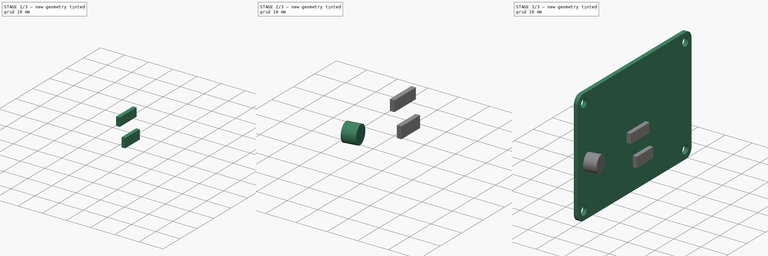
[diagram: build sequence overview — one tinted view per stage of 3, left to right]
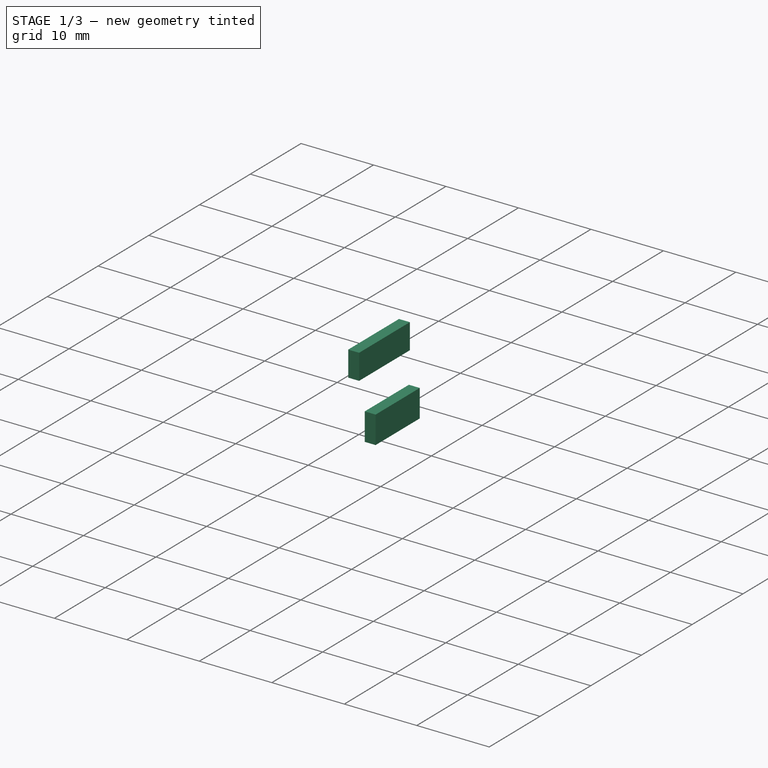
[diagram: stage 1 of 3 — iso view after this stage's code; geometry added in this stage tinted green]
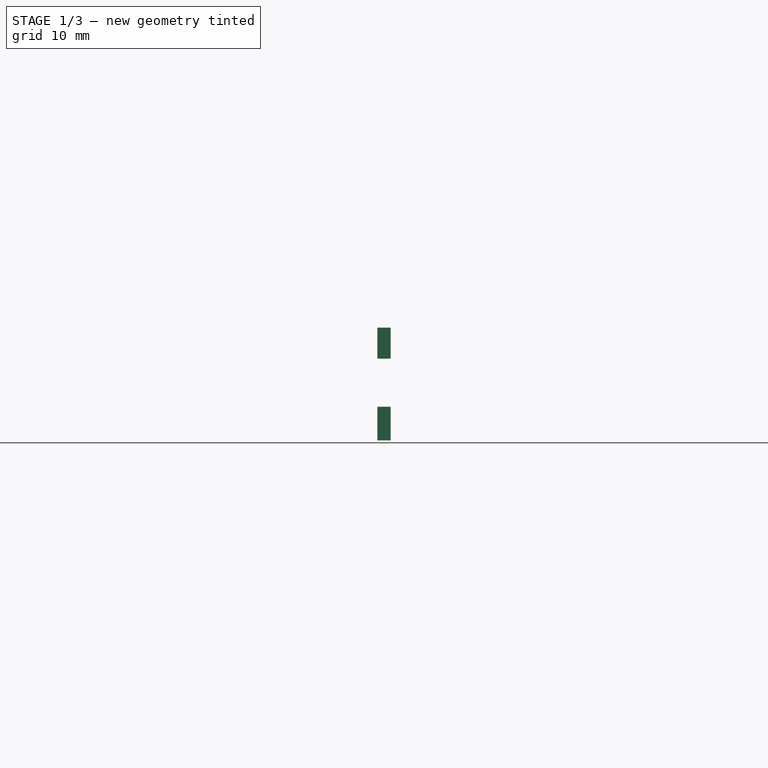
[diagram: stage 1 of 3 — front view after this stage's code; geometry added in this stage tinted green]
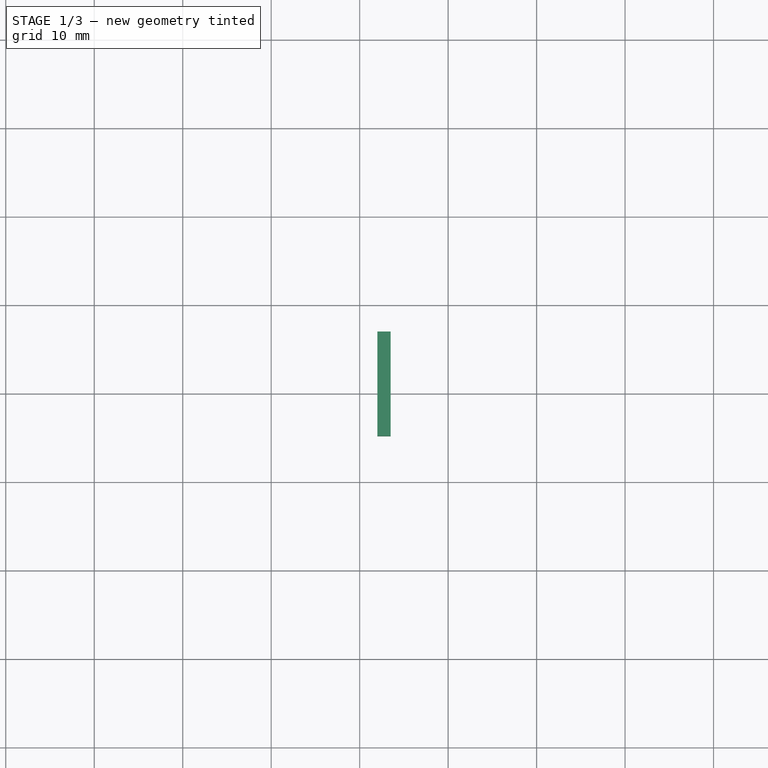
[diagram: stage 1 of 3 — top view after this stage's code; geometry added in this stage tinted green]
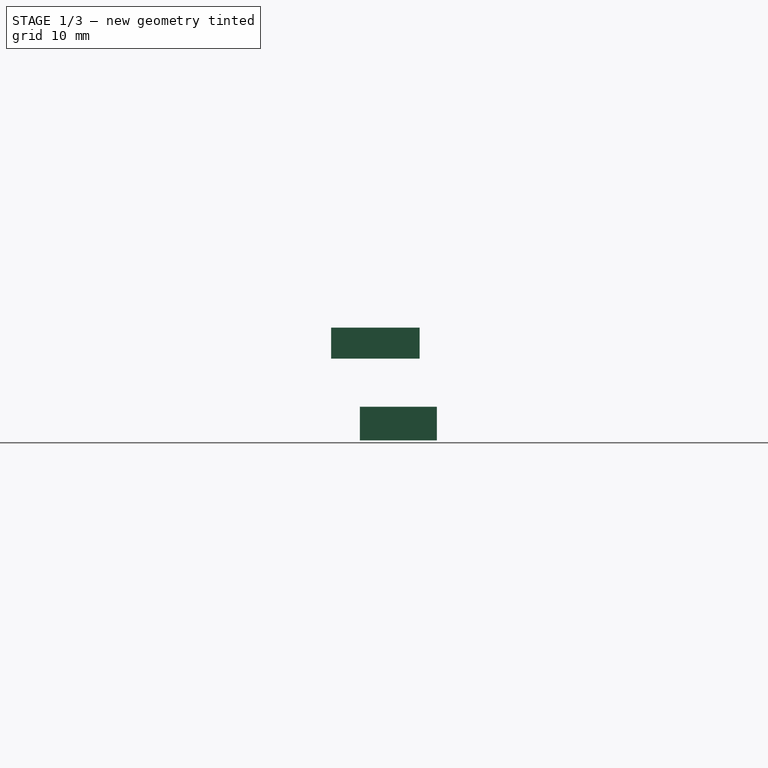
[diagram: stage 1 of 3 — right view after this stage's code; geometry added in this stage tinted green]
FCSTD DOCUMENT  (FreeCAD 1.0R39109 (Git))
Label: DFrobotSoundSensor
License: All rights reserved
LicenseURL: https://en.wikipedia.org/wiki/All_rights_reserved
objects: Part::Feature×4, App::Part×3, Part::Box×2, Sketcher::SketchObject×1, Part::Extrusion×1, Part::Fillet×1, Part::Cylinder×1
note: 11 computed .brp shape members not serialized (recipe doc carries the construction recipe); baked Part::Feature solids carry a one-line shape summary decoded from their .brp

FEATURE [Part::Box] Box  label="Cube"
  AttacherType = Attacher::AttachEngine3D
  Height = 3.5
  Length = 1.5
  Placement = pos=(2,25.05,17.75) rot=(0,0,1;0rad)
  Width = 10
FEATURE [Part::Box] Box001  label="Cube001"
  AttacherType = Attacher::AttachEngine3D
  Height = 3.8
  Length = 1.5
  Placement = pos=(2,28.3,8.5) rot=(0,0,1;0rad)
  Width = 8.7
FEATURE [App::Part] Part  label="SEN0232"
  Group = -> [__pin_RMC_v0,Sketch,Extrude,Fillet,Cylinder,Box,Box001]
  Origin = -> Origin
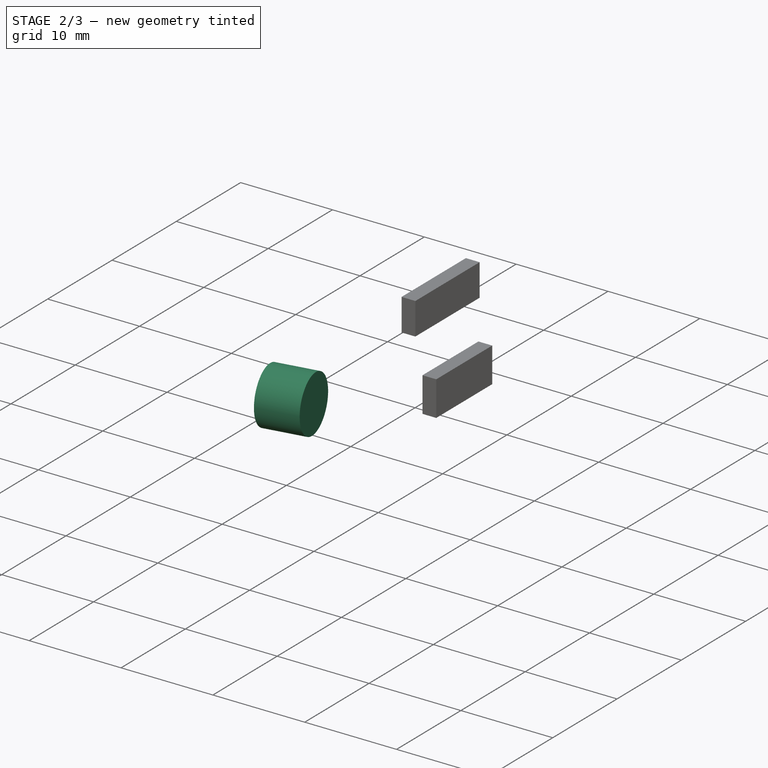
[diagram: stage 2 of 3 — iso view after this stage's code; geometry added in this stage tinted green]
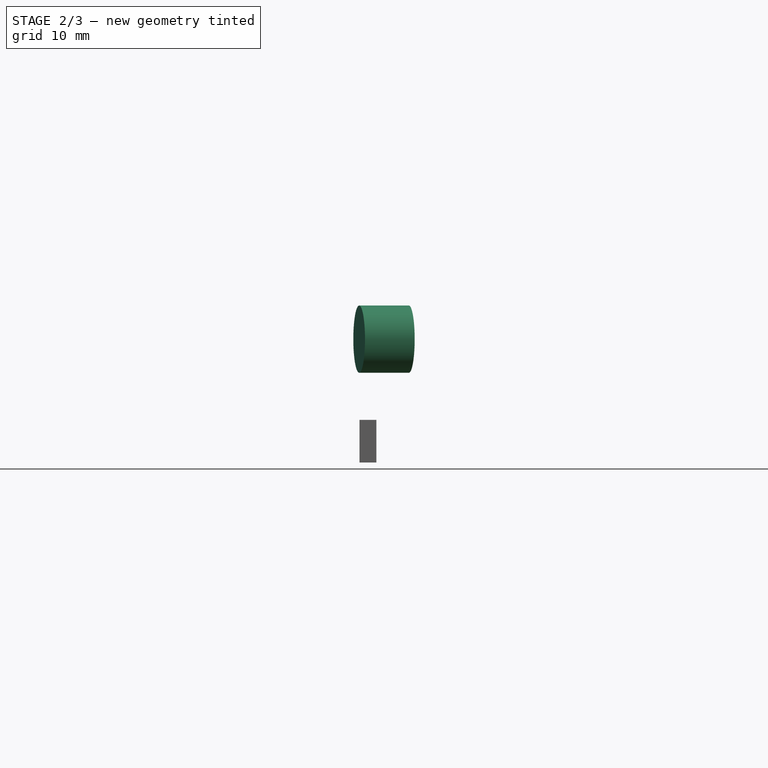
[diagram: stage 2 of 3 — front view after this stage's code; geometry added in this stage tinted green]
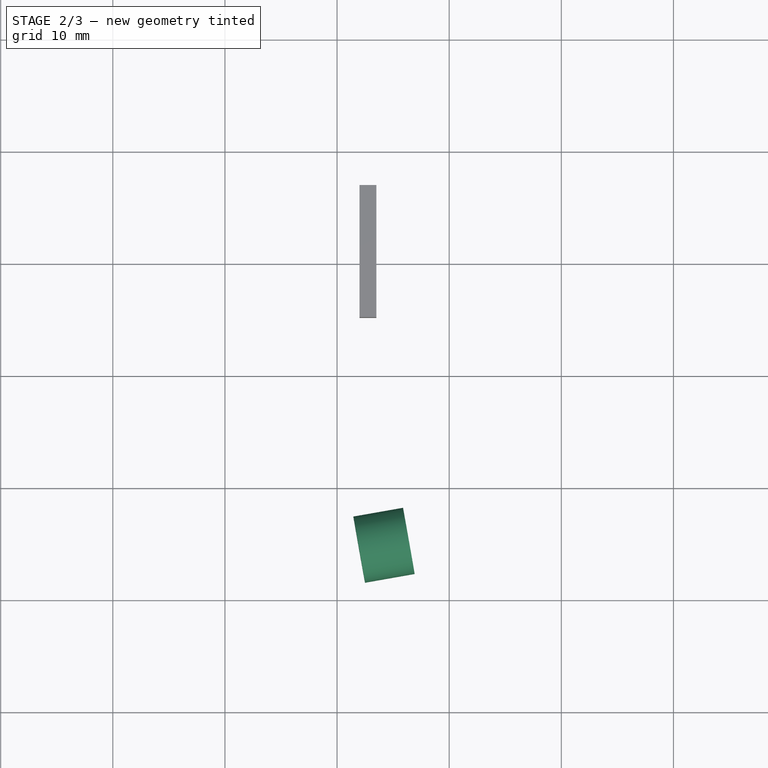
[diagram: stage 2 of 3 — top view after this stage's code; geometry added in this stage tinted green]
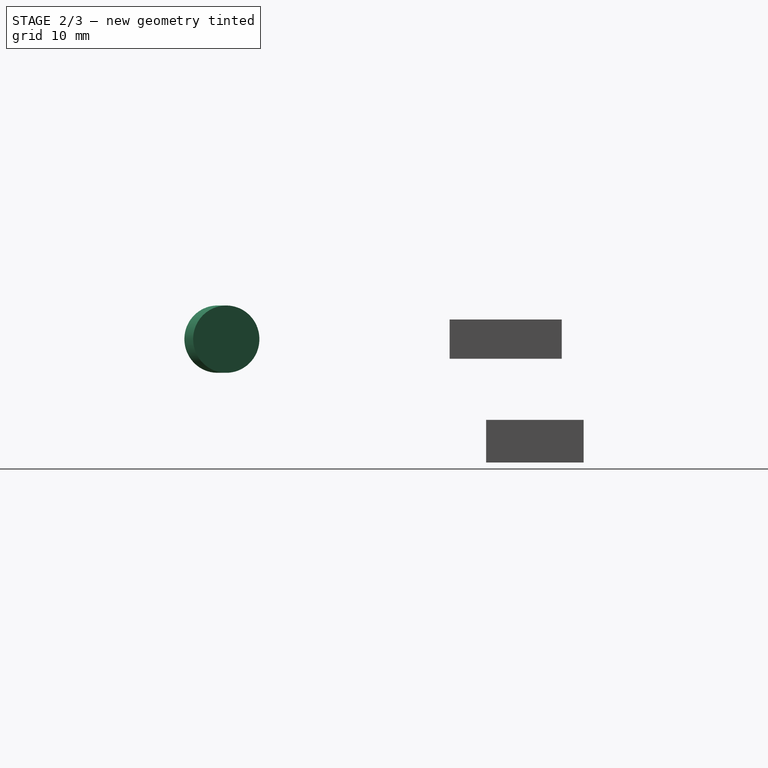
[diagram: stage 2 of 3 — right view after this stage's code; geometry added in this stage tinted green]
FEATURE [Part::Cylinder] Cylinder  label="MIC"
  Angle = 360
  AttacherType = Attacher::AttachEngine3D
  FirstAngle = 0
  Height = 4.5
  Placement = pos=(1.96962,4.3473,19.5) rot=(0.086827,-0.992433,-0.086827;4.70479rad)
  Radius = 3
  SecondAngle = 0
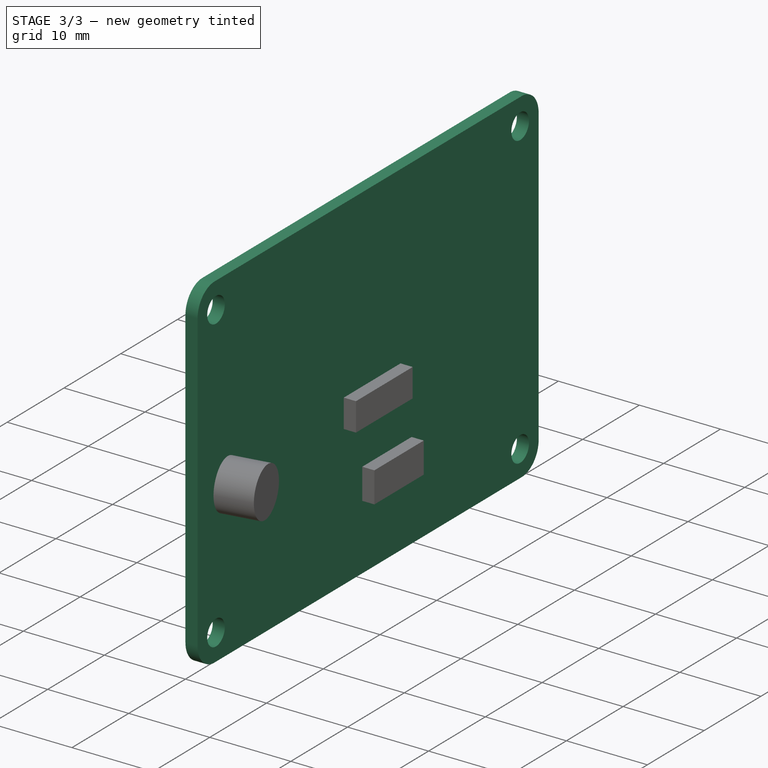
[diagram: stage 3 of 3 — iso view after this stage's code; geometry added in this stage tinted green]
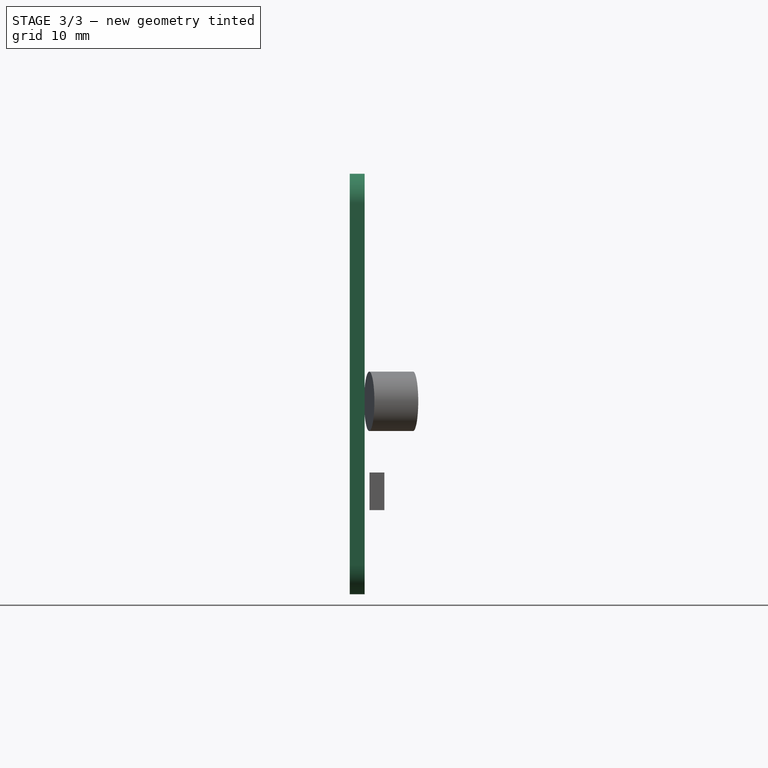
[diagram: stage 3 of 3 — front view after this stage's code; geometry added in this stage tinted green]
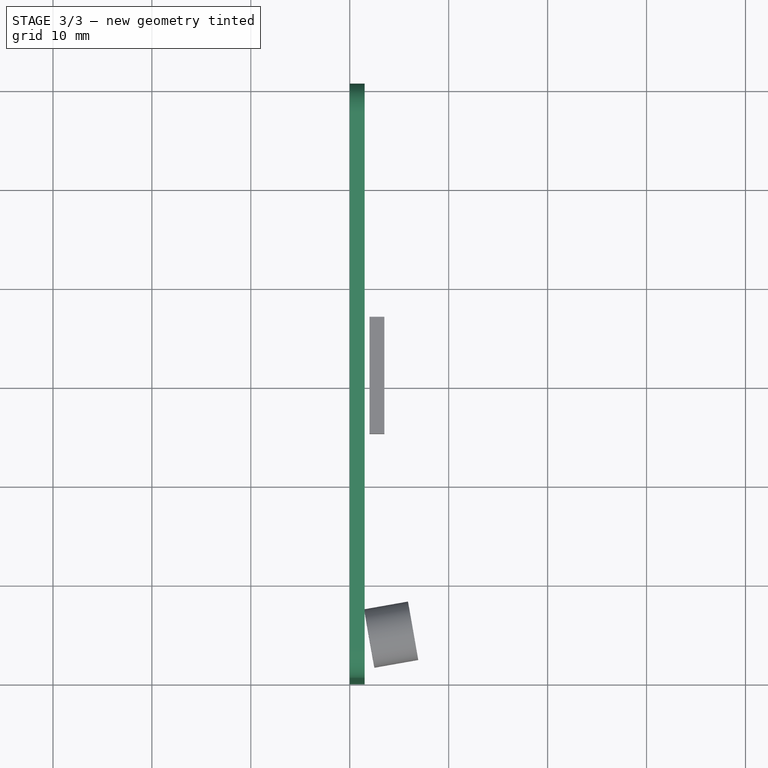
[diagram: stage 3 of 3 — top view after this stage's code; geometry added in this stage tinted green]
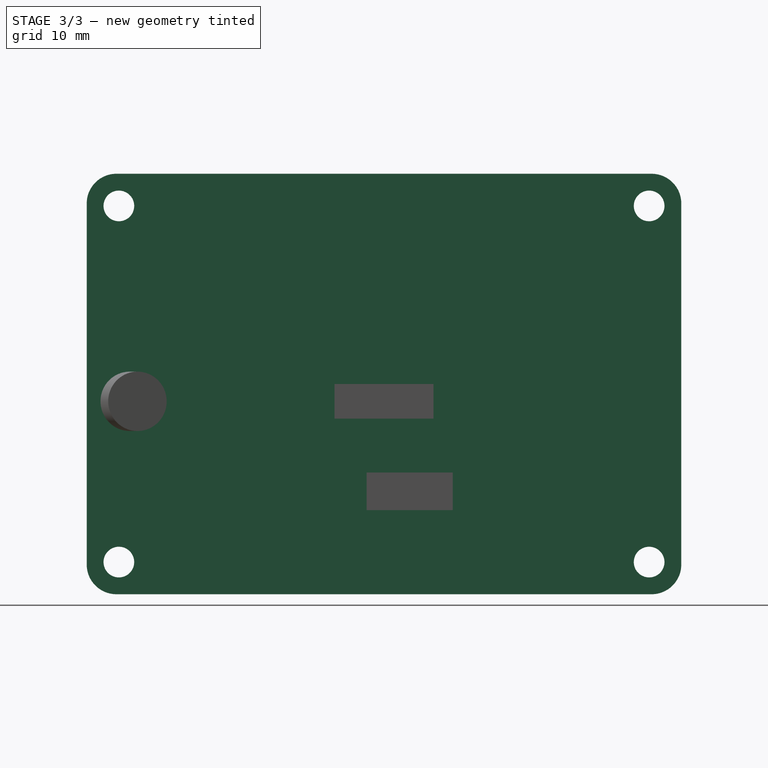
[diagram: stage 3 of 3 — right view after this stage's code; geometry added in this stage tinted green]
FEATURE [Part::Feature] Part__Feature003  label="SOLID"
  shape: bbox 9.98 x 5.7 x 7 mm, 38 faces (baked)
FEATURE [Part::Feature] Part__Feature  label="pins"
  Placement = pos=(7.37732,-14.6706,0.356181) rot=(-1,0,0;1.5708rad)
  shape: bbox 0.64 x 0.64 x 8.5 mm, 12 faces (baked)
FEATURE [Part::Feature] Part__Feature001  label="pins001"
  Placement = pos=(7.37732,-14.6706,0.356181) rot=(-1,0,0;1.5708rad)
  shape: bbox 0.64 x 0.64 x 8.5 mm, 12 faces (baked)
FEATURE [Part::Feature] Part__Feature002  label="pins002"
  Placement = pos=(7.37732,-14.6706,0.356181) rot=(-1,0,0;1.5708rad)
  shape: bbox 0.64 x 0.64 x 8.5 mm, 12 faces (baked)
FEATURE [App::Part] pins  label="pins003"
  Group = -> [Part__Feature,Part__Feature001,Part__Feature002]
  Origin = -> Origin001
FEATURE [App::Part] __pin_RMC_v0  label="3 pin RMC v0"
  Group = -> [pins,Part__Feature003]
  Origin = -> Origin002
  Placement = pos=(4.5,53,29) rot=(0.57735,-0.57735,0.57735;2.0944rad)
FEATURE [Sketcher::SketchObject] Sketch
  ArcFitTolerance = 1e-06
  FullyConstrained = true
  MakeInternals = false
  Placement = pos=(0,0,0) rot=(0.57735,0.57735,0.57735;2.0944rad)
  sketch-geometry (8):
    g0: LineSegment StartX=0 StartY=0 StartZ=0 EndX=60.1 EndY=0 EndZ=0
    g1: LineSegment StartX=60.1 StartY=0 StartZ=0 EndX=60.1 EndY=42.5 EndZ=0
    g2: LineSegment StartX=60.1 StartY=42.5 StartZ=0 EndX=0 EndY=42.5 EndZ=0
    g3: LineSegment StartX=0 StartY=42.5 StartZ=0 EndX=0 EndY=0 EndZ=0
    g4: Circle CenterX=3.25 CenterY=3.25 CenterZ=0 NormalX=0 NormalY=0 NormalZ=1 AngleXU=0 Radius=1.55
    g5: Circle CenterX=3.25 CenterY=39.25 CenterZ=0 NormalX=0 NormalY=0 NormalZ=1 AngleXU=0 Radius=1.55
    g6: Circle CenterX=56.85 CenterY=39.25 CenterZ=0 NormalX=0 NormalY=0 NormalZ=1 AngleXU=0 Radius=1.55
    g7: Circle CenterX=56.85 CenterY=3.25 CenterZ=0 NormalX=0 NormalY=0 NormalZ=1 AngleXU=0 Radius=1.55
  constraints (23):
    c: Coincident(g0,g1)
    c: Coincident(g1,g2)
    c: Coincident(g2,g3)
    c: Coincident(g3,g0)
    c: Horizontal(g0)
    c: Horizontal(g2)
    c: Vertical(g1)
    c: Vertical(g3)
    c: Coincident(g0,g-1)
    c: Distance(g0) = 60.1
    c: Distance(g3) = 42.5
    c: Diameter(g4) = 3.1
    c: Distance(g5,g3) = 3.25
    c: Distance(g5,g2) = 3.25
    c: Distance(g7,g1) = 3.25
    c: Distance(g7,g0) = 3.25
    c: Distance(g6,g1) = 3.25
    c: Distance(g6,g2) = 3.25
    c: Equal(g5,g6)
    c: Equal(g5,g7)
    c: Diameter(g5) = 3.1
    c: Distance(g4,g0) = 3.25
    c: Distance(g4,g3) = 3.25
FEATURE [Part::Extrusion] Extrude
  Base = -> Sketch
  Dir = (1,0,0)
  DirMode = 2
  FaceMakerClass = Part::FaceMakerBullseye
  FaceMakerMode = 3
  LengthFwd = 1.5
  LengthRev = 0
  Solid = true
  Symmetric = false
FEATURE [Part::Fillet] Fillet  label="pcb"
  Base = -> Extrude
  EdgeLinks = -> Extrude [Edge1,Edge2,?Edge5,?Edge8]
  Edges = 4 edges r=3: [Edge1,Edge2,Edge5,Edge8]
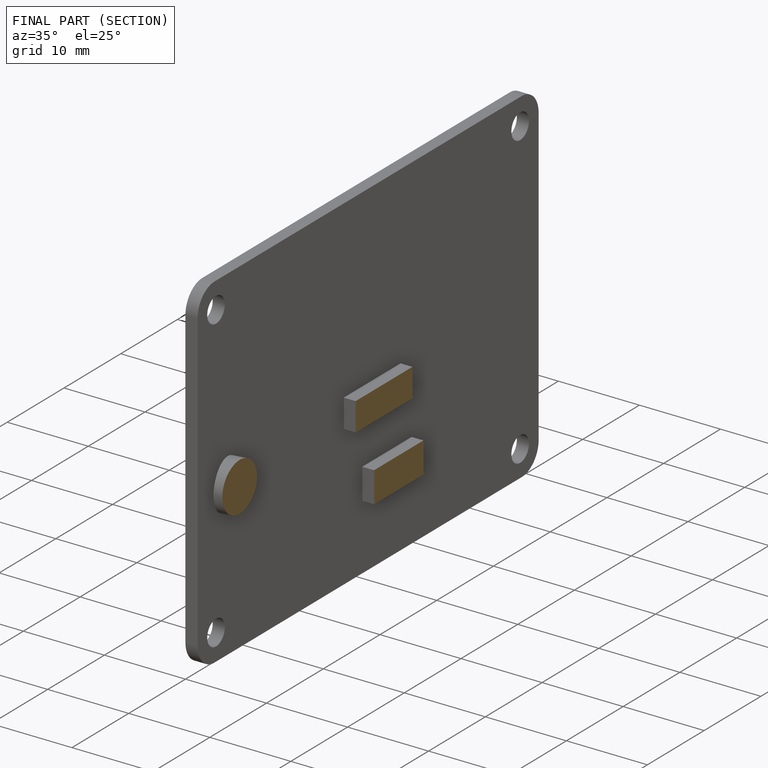
[diagram: finished part — half-section view (interior)]
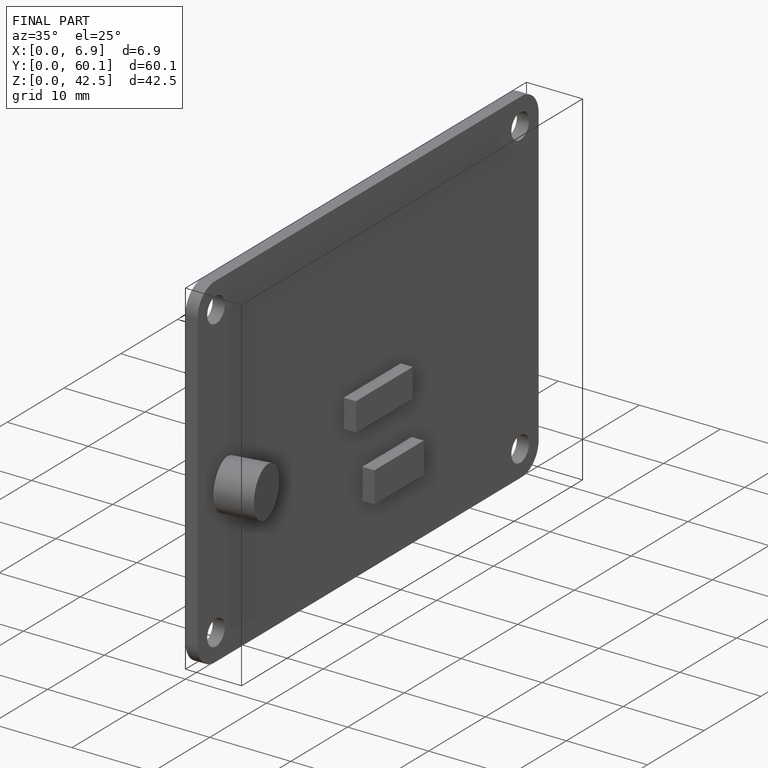
[diagram: finished part — iso view with bounding-box wireframe]
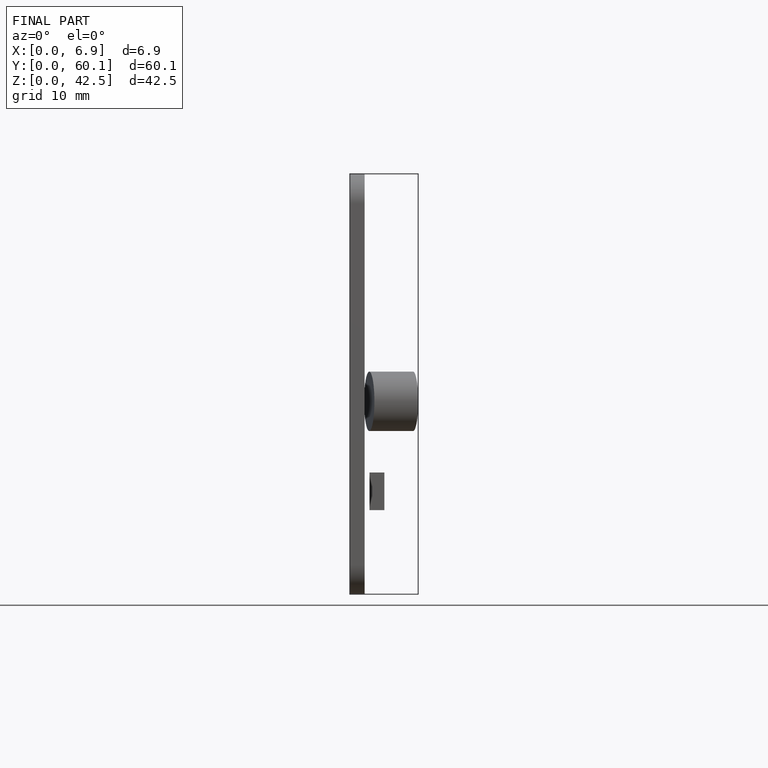
[diagram: finished part — front view with bounding-box wireframe]
